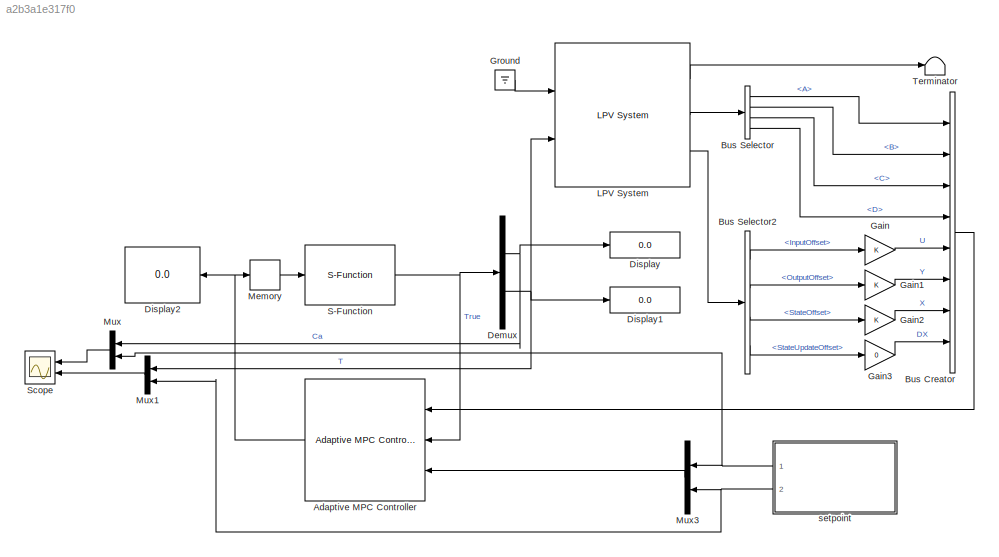
MODEL slx_a2b3a1e317f0
KIND model
CONFIG AbsTol = auto
CONFIG EnableMultiTasking = off
CONFIG FixedStep = auto
CONFIG MaxStep = auto
CONFIG MinStep = auto
CONFIG RelTol = auto
CONFIG SampleTimeConstraint = Unconstrained
CONFIG SolverName = ode45
CONFIG StartTime = 0.0
CONFIG StopTime = 120
BLOCK [Reference] Adaptive MPC Controller  REF=mpclib/Adaptive MPC Controller  (lib defined in mdl_ae329e0e0455)
  Ports = [3, 1]
  SCDEnableBlockLinearizationSpecification = on
  SourceBlock = mpclib/Adaptive MPC Controller
  SourceProductBaseCode = MP
  SourceType = Adaptive MPC
BLOCK [BusCreator] Bus Creator
  DisplayOption = bar
  InheritFromInputs = on
  Inputs = 8
  Ports = [8, 1]
BLOCK [BusSelector] Bus Selector
  OutputSignals = A,B,C,D
  Ports = [1, 4]
BLOCK [BusSelector] Bus Selector2
  OutputSignals = InputOffset,OutputOffset,StateOffset,StateUpdateOffset
  Ports = [1, 4]
BLOCK [Demux] Demux
  Outputs = 2
  Ports = [1, 2]
BLOCK [Display] Display
  Decimation = 1
  Ports = [1]
BLOCK [Display] Display1
  Decimation = 1
  Ports = [1]
BLOCK [Display] Display2
  Decimation = 1
  Ports = [1]
BLOCK [Gain] Gain
BLOCK [Gain] Gain1
BLOCK [Gain] Gain2
BLOCK [Gain] Gain3
  Gain = 0
BLOCK [Ground] Ground
BLOCK [Reference] LPV System  REF=cstblocks/Linear Parameter Varying/LPV System
  Ports = [2, 3]
  SourceBlock = cstblocks/Linear Parameter Varying/LPV System
  SourceProductBaseCode = CT
  SourceType = LPV Block
BLOCK [Memory] Memory
  InitialCondition = [103.4;100]
BLOCK [Mux] Mux
  DisplayOption = bar
  Inputs = 2
  NameLocation = top
  Ports = [2, 1]
BLOCK [Mux] Mux1
  DisplayOption = bar
  Inputs = 2
  NameLocation = top
  Ports = [2, 1]
BLOCK [Mux] Mux3
  DisplayOption = bar
  Inputs = 2
  Ports = [2, 1]
BLOCK [S-Function] S-Function
  EnableBusSupport = off
  FunctionName = pr_sfun
  Ports = [1, 1]
  SFcnIsStateOwnerBlock = off
  SFunctionDeploymentMode = off
BLOCK [Scope] Scope
  Floating = off
  NumInputPorts = 2
  Ports = [2]
  ScopeSpecificationString = Simulink.scopes.TimeScopeBlockCfg('CurrentConfiguration', extmgr.ConfigurationSet(extmgr.Configuration('Core','General UI',true),extmgr.Configuration('Core','Source UI',true),extmgr.Configuration('Sources','WiredSimulink',true,'DataLoggingVariableName','ScopeData1'),extmgr.Configuration('Visuals','Time Domain',true,'SerializedDisplays',{struct('MinYLimReal','0.00336','MaxYLimReal','0.14985','YLabe...<+2057ch>
BLOCK [Terminator] Terminator
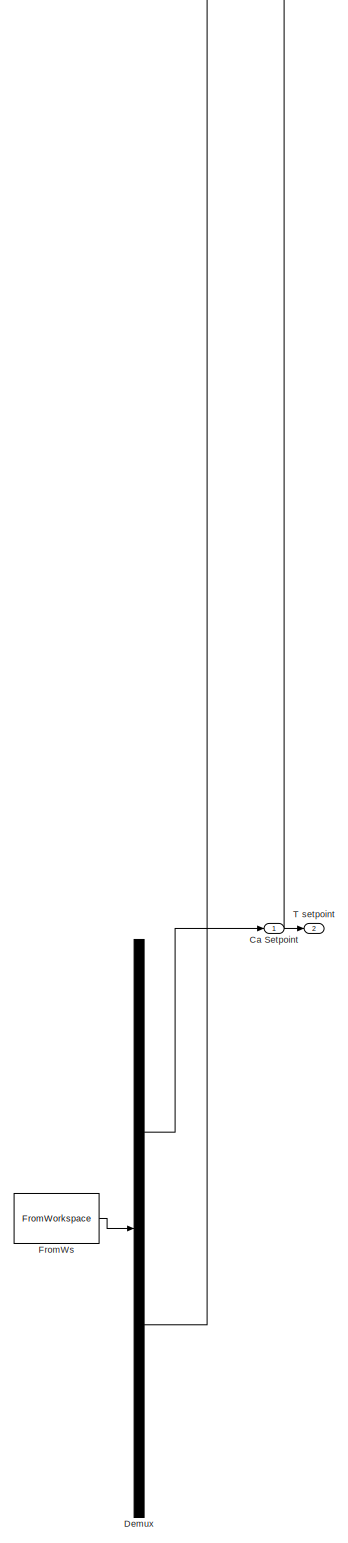
[diagram: setpoint - part 1/1, full width, bottom band]
BLOCK [SubSystem] setpoint
  ClipboardFcn = sigbuilder_block('clipboard');
  CloseFcn = sigbuilder_block('close');
  ContinueFcn = sigbuilder_block('continue');
  CopyFcn = sigbuilder_block('copy');
  DeleteFcn = sigbuilder_block('delete');
  LoadFcn = sigbuilder_block('load');
  MaskHideContents = on
  ModelCloseFcn = sigbuilder_block('modelClose');
  NameChangeFcn = sigbuilder_block('namechange');
  OpenFcn = sigbuilder_block('open',[5.5 0 949 448 ]);
  PauseFcn = sigbuilder_block('pause');
  Ports = [0, 2]
  PreSaveFcn = sigbuilder_block('preSave');
  RequestExecContextInheritance = off
  StartFcn = sigbuilder_block('start');
  StopFcn = sigbuilder_block('stop');
  Tag = STV Subsys
BLOCK [Outport] setpoint/Ca Setpoint
  Tag = STV Outport
BLOCK [Demux] setpoint/Demux
  DisplayOption = none
  Outputs = 2
  Ports = [1, 2]
  Tag = STV Demux
BLOCK [FromWorkspace] setpoint/FromWs
  Tag = STV FromWs
  VariableName = tuvar
BLOCK [Outport] setpoint/T setpoint
  Port = 2
  Tag = STV Outport
NET Adaptive MPC Controller:1 -> Display2:1, Memory:1
LINE Bus Creator:1 -> Adaptive MPC Controller:1
LINE Bus Selector2:1 -> Gain:1
LINE Bus Selector2:2 -> Gain1:1
LINE Bus Selector2:3 -> Gain2:1
LINE Bus Selector2:4 -> Gain3:1
LINE Bus Selector:1 -> Bus Creator:1
LINE Bus Selector:2 -> Bus Creator:2
LINE Bus Selector:3 -> Bus Creator:3
LINE Bus Selector:4 -> Bus Creator:4
NET Demux:1 -> Display:1, Mux:1
NET Demux:2 -> Display1:1, LPV System:2, Mux1:1
LINE Gain1:1 -> Bus Creator:6
LINE Gain2:1 -> Bus Creator:7
LINE Gain3:1 -> Bus Creator:8
LINE Gain:1 -> Bus Creator:5
LINE Ground:1 -> LPV System:1
LINE LPV System:1 -> Terminator:1
LINE LPV System:2 -> Bus Selector:1
LINE LPV System:3 -> Bus Selector2:1
LINE Memory:1 -> S-Function:1
LINE Mux1:1 -> Scope:2
LINE Mux3:1 -> Adaptive MPC Controller:3
LINE Mux:1 -> Scope:1
NET S-Function:1 -> Adaptive MPC Controller:2, Demux:1
NET setpoint:1 -> Mux3:1, Mux:2
NET setpoint:2 -> Mux1:2, Mux3:2
note: NET lines group one-source signal fan-out (src -> all destinations, sorted); 1:1 wires keep LINE
